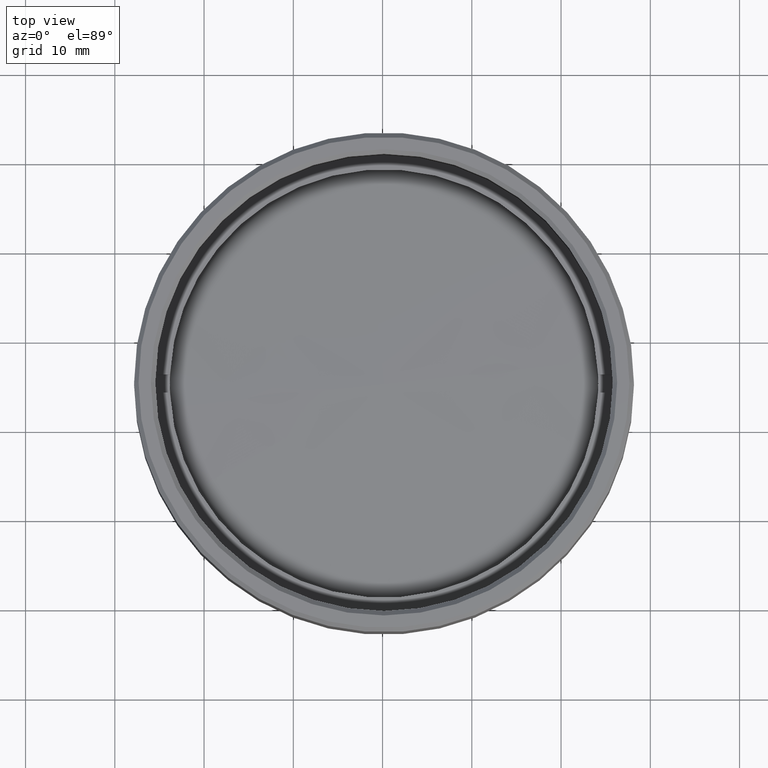
[diagram: clean part render]
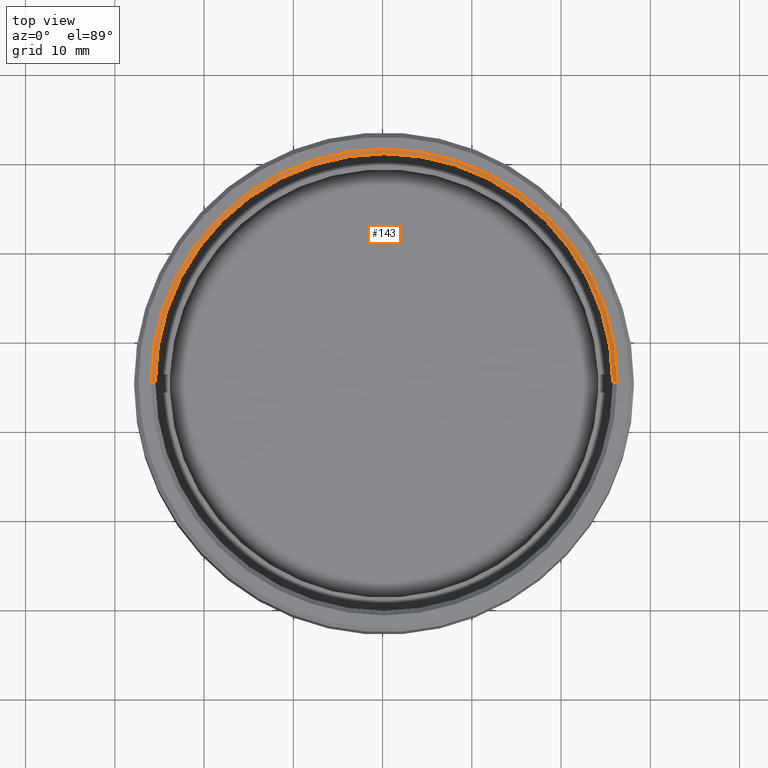
[diagram: same view with one face highlighted and labeled with its STEP entity id]
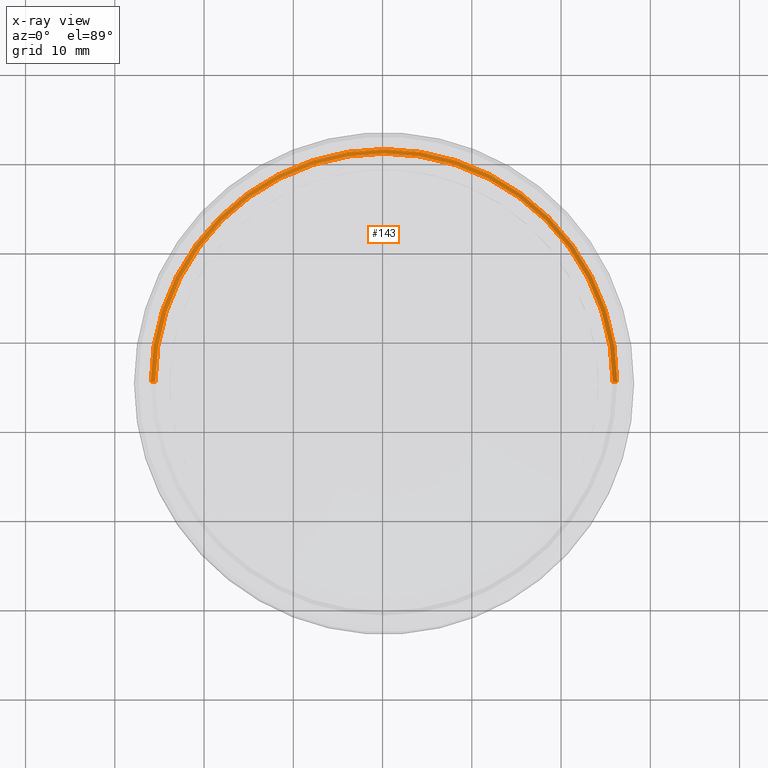
[diagram: x-ray of the same camera — body ghosted, the highlighted face saturated]
A machine part, top view. The second image highlights one B-rep face of the part: STEP entity #143.
The next image is the same camera in x-ray: the body ghosted, the highlighted face saturated — about 0% of this face is hidden behind the body in this view.
In plain terms, the highlighted conical surface has half-angle 45 deg.
Its self-contained STEP definition (entity closure, byte-faithful):
#28 = CARTESIAN_POINT ( 'NONE',  ( 0.000000000000000000, 0.000000000000000000, 21.00000000000000355 ) ) ;
#133 = DIRECTION ( 'NONE',  ( 0.000000000000000000, 0.000000000000000000, 1.000000000000000000 ) ) ;
#143 = ADVANCED_FACE ( 'NONE', ( #381 ), #575, .F. ) ;
#262 = ORIENTED_EDGE ( 'NONE', *, *, #704, .T. ) ;
#332 = VERTEX_POINT ( 'NONE', #430 ) ;
#381 = FACE_OUTER_BOUND ( 'NONE', #1702, .T. ) ;
#430 = CARTESIAN_POINT ( 'NONE',  ( -26.12500000000000355, 3.199389762772460873E-15, 21.50000000000000000 ) ) ;
#452 = EDGE_CURVE ( 'NONE', #332, #1089, #1423, .T. ) ;
#469 = CARTESIAN_POINT ( 'NONE',  ( 26.12500000000000355, 0.000000000000000000, 21.50000000000000000 ) ) ;
#575 = CONICAL_SURFACE ( 'NONE', #772, 25.62500000000000000, 0.7853981633974587151 ) ;
#591 = CARTESIAN_POINT ( 'NONE',  ( 25.62500000000000000, 0.000000000000000000, 21.00000000000000355 ) ) ;
#596 = DIRECTION ( 'NONE',  ( 0.7071067811865549002, 0.000000000000000000, 0.7071067811865402453 ) ) ;
#600 = CARTESIAN_POINT ( 'NONE',  ( 0.000000000000000000, 0.000000000000000000, 21.50000000000000000 ) ) ;
#644 = EDGE_CURVE ( 'NONE', #782, #332, #1115, .T. ) ;
#704 = EDGE_CURVE ( 'NONE', #1452, #1089, #1007, .T. ) ;
#714 = CARTESIAN_POINT ( 'NONE',  ( 25.62500000000000000, 0.000000000000000000, 21.00000000000000355 ) ) ;
#772 = AXIS2_PLACEMENT_3D ( 'NONE', #1221, #133, #1470 ) ;
#775 = ORIENTED_EDGE ( 'NONE', *, *, #1343, .F. ) ;
#782 = VERTEX_POINT ( 'NONE', #1247 ) ;
#923 = AXIS2_PLACEMENT_3D ( 'NONE', #600, #1012, #927 ) ;
#927 = DIRECTION ( 'NONE',  ( 1.000000000000000000, 0.000000000000000000, 0.000000000000000000 ) ) ;
#938 = ORIENTED_EDGE ( 'NONE', *, *, #452, .F. ) ;
#1007 = LINE ( 'NONE', #591, #1574 ) ;
#1012 = DIRECTION ( 'NONE',  ( -0.000000000000000000, -0.000000000000000000, -1.000000000000000000 ) ) ;
#1075 = AXIS2_PLACEMENT_3D ( 'NONE', #28, #1647, #1240 ) ;
#1089 = VERTEX_POINT ( 'NONE', #469 ) ;
#1115 = LINE ( 'NONE', #1242, #1146 ) ;
#1146 = VECTOR ( 'NONE', #1378, 1000.000000000000114 ) ;
#1221 = CARTESIAN_POINT ( 'NONE',  ( 0.000000000000000000, 0.000000000000000000, 21.00000000000000355 ) ) ;
#1240 = DIRECTION ( 'NONE',  ( 1.000000000000000000, 0.000000000000000000, 0.000000000000000000 ) ) ;
#1242 = CARTESIAN_POINT ( 'NONE',  ( -25.62500000000000000, 3.138157422815092510E-15, 21.00000000000000355 ) ) ;
#1247 = CARTESIAN_POINT ( 'NONE',  ( -25.62500000000000000, 3.138157422815092510E-15, 21.00000000000000355 ) ) ;
#1343 = EDGE_CURVE ( 'NONE', #1452, #782, #1606, .T. ) ;
#1378 = DIRECTION ( 'NONE',  ( -0.7071067811865549002, 8.659560562355021605E-17, 0.7071067811865402453 ) ) ;
#1423 = CIRCLE ( 'NONE', #923, 26.12500000000000355 ) ;
#1452 = VERTEX_POINT ( 'NONE', #714 ) ;
#1470 = DIRECTION ( 'NONE',  ( 1.000000000000000000, 0.000000000000000000, 0.000000000000000000 ) ) ;
#1574 = VECTOR ( 'NONE', #596, 1000.000000000000114 ) ;
#1588 = ORIENTED_EDGE ( 'NONE', *, *, #644, .F. ) ;
#1606 = CIRCLE ( 'NONE', #1075, 25.62500000000000000 ) ;
#1647 = DIRECTION ( 'NONE',  ( 0.000000000000000000, 0.000000000000000000, 1.000000000000000000 ) ) ;
#1702 = EDGE_LOOP ( 'NONE', ( #1588, #775, #262, #938 ) ) ;